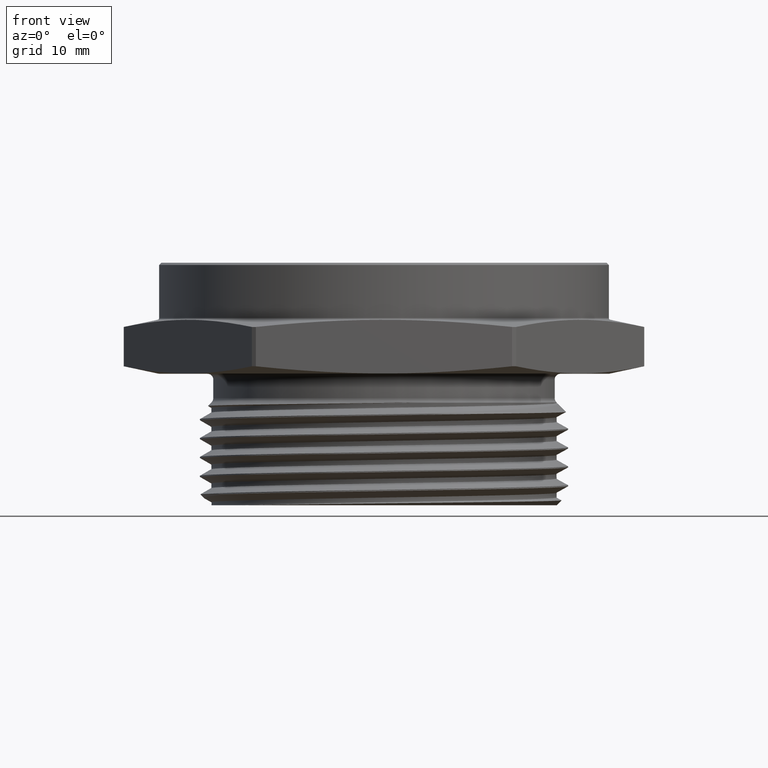
[diagram: clean part render]
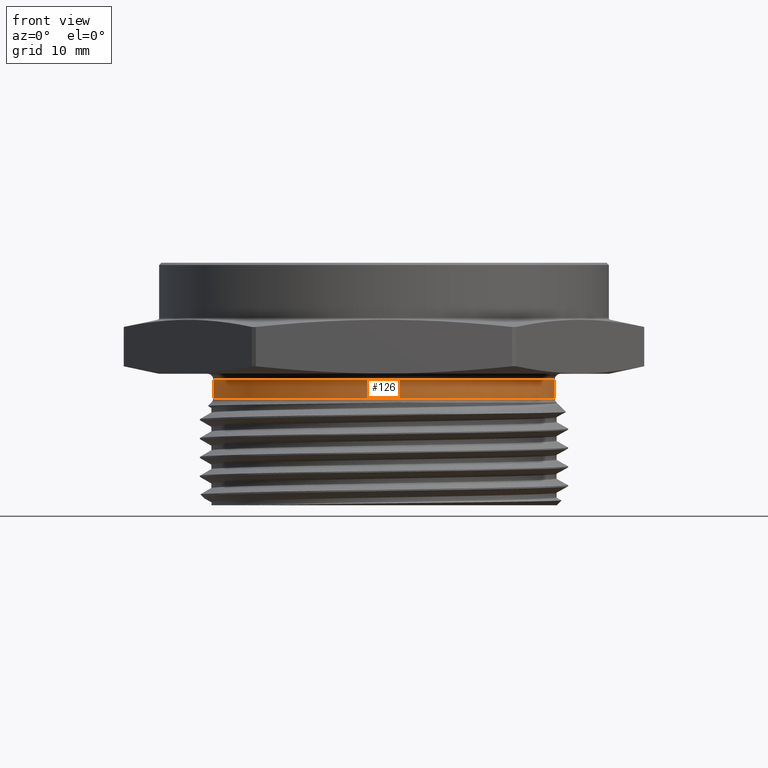
[diagram: same view with one face highlighted and labeled with its STEP entity id]
A machine part, front view. The second image highlights one B-rep face of the part: STEP entity #126.
In plain terms, the highlighted cylindrical surface (partial cylindrical patch) has radius 19.1389 mm, axis along (-0, -0, 1).
Its self-contained STEP definition (entity closure, byte-faithful):
#31 = EDGE_LOOP ( 'NONE', ( #2346, #2347, #2348, #2349 ) ) ;
#126 = ADVANCED_FACE ( 'NONE', ( #2314 ), #661, .T. ) ;
#331 = AXIS2_PLACEMENT_3D ( 'NONE', #3227, #3226, #3229 ) ;
#346 = AXIS2_PLACEMENT_3D ( 'NONE', #1998, #1999, #2000 ) ;
#360 = AXIS2_PLACEMENT_3D ( 'NONE', #2518, #2519, #2520 ) ;
#503 = VERTEX_POINT ( 'NONE', #1938 ) ;
#518 = VERTEX_POINT ( 'NONE', #1953 ) ;
#568 = VERTEX_POINT ( 'NONE', #1976 ) ;
#570 = VERTEX_POINT ( 'NONE', #1977 ) ;
#572 = LINE ( 'NONE', #2392, #577 ) ;
#577 = VECTOR ( 'NONE', #2387, 39.37007874015748100 ) ;
#581 = LINE ( 'NONE', #2454, #586 ) ;
#586 = VECTOR ( 'NONE', #2506, 39.37007874015748100 ) ;
#589 = CIRCLE ( 'NONE', #360, 0.7534999999999999500 ) ;
#661 = CYLINDRICAL_SURFACE ( 'NONE', #331, 0.7534999999999999500 ) ;
#671 = CIRCLE ( 'NONE', #346, 0.7534999999999999500 ) ;
#1938 = CARTESIAN_POINT ( 'NONE',  ( -0.7534999999999999500, 9.227713631575306300E-017, -0.02500000000000004000 ) ) ;
#1953 = CARTESIAN_POINT ( 'NONE',  ( 0.7534999999999999500, 0.0000000000000000000, -0.02500000000000004000 ) ) ;
#1976 = CARTESIAN_POINT ( 'NONE',  ( 0.7534999999999999500, 0.0000000000000000000, -0.1073223304703361400 ) ) ;
#1977 = CARTESIAN_POINT ( 'NONE',  ( -0.7534999999999999500, 9.272549974439287200E-017, -0.1073223304703361400 ) ) ;
#1998 = CARTESIAN_POINT ( 'NONE',  ( 0.0000000000000000000, 0.0000000000000000000, -0.02500000000000004000 ) ) ;
#1999 = DIRECTION ( 'NONE',  ( -0.0000000000000000000, -0.0000000000000000000, 1.000000000000000000 ) ) ;
#2000 = DIRECTION ( 'NONE',  ( 1.000000000000000000, 0.0000000000000000000, 0.0000000000000000000 ) ) ;
#2314 = FACE_OUTER_BOUND ( 'NONE', #31, .T. ) ;
#2346 = ORIENTED_EDGE ( 'NONE', *, *, #2914, .F. ) ;
#2347 = ORIENTED_EDGE ( 'NONE', *, *, #2926, .T. ) ;
#2348 = ORIENTED_EDGE ( 'NONE', *, *, #2922, .T. ) ;
#2349 = ORIENTED_EDGE ( 'NONE', *, *, #2899, .F. ) ;
#2387 = DIRECTION ( 'NONE',  ( -0.0000000000000000000, -0.0000000000000000000, 1.000000000000000000 ) ) ;
#2392 = CARTESIAN_POINT ( 'NONE',  ( -0.7534999999999999500, 9.227713631575306300E-017, 0.0000000000000000000 ) ) ;
#2454 = CARTESIAN_POINT ( 'NONE',  ( 0.7534999999999999500, 0.0000000000000000000, 0.0000000000000000000 ) ) ;
#2506 = DIRECTION ( 'NONE',  ( -0.0000000000000000000, -0.0000000000000000000, 1.000000000000000000 ) ) ;
#2518 = CARTESIAN_POINT ( 'NONE',  ( 0.0000000000000000000, 0.0000000000000000000, -0.1073223304703361400 ) ) ;
#2519 = DIRECTION ( 'NONE',  ( -0.0000000000000000000, -0.0000000000000000000, 1.000000000000000000 ) ) ;
#2520 = DIRECTION ( 'NONE',  ( 1.000000000000000000, 0.0000000000000000000, 0.0000000000000000000 ) ) ;
#2899 = EDGE_CURVE ( 'NONE', #503, #518, #671, .T. ) ;
#2914 = EDGE_CURVE ( 'NONE', #570, #503, #572, .T. ) ;
#2922 = EDGE_CURVE ( 'NONE', #568, #518, #581, .T. ) ;
#2926 = EDGE_CURVE ( 'NONE', #570, #568, #589, .T. ) ;
#3226 = DIRECTION ( 'NONE',  ( -0.0000000000000000000, -0.0000000000000000000, 1.000000000000000000 ) ) ;
#3227 = CARTESIAN_POINT ( 'NONE',  ( 0.0000000000000000000, 0.0000000000000000000, 0.0000000000000000000 ) ) ;
#3229 = DIRECTION ( 'NONE',  ( 1.000000000000000000, 0.0000000000000000000, 0.0000000000000000000 ) ) ;